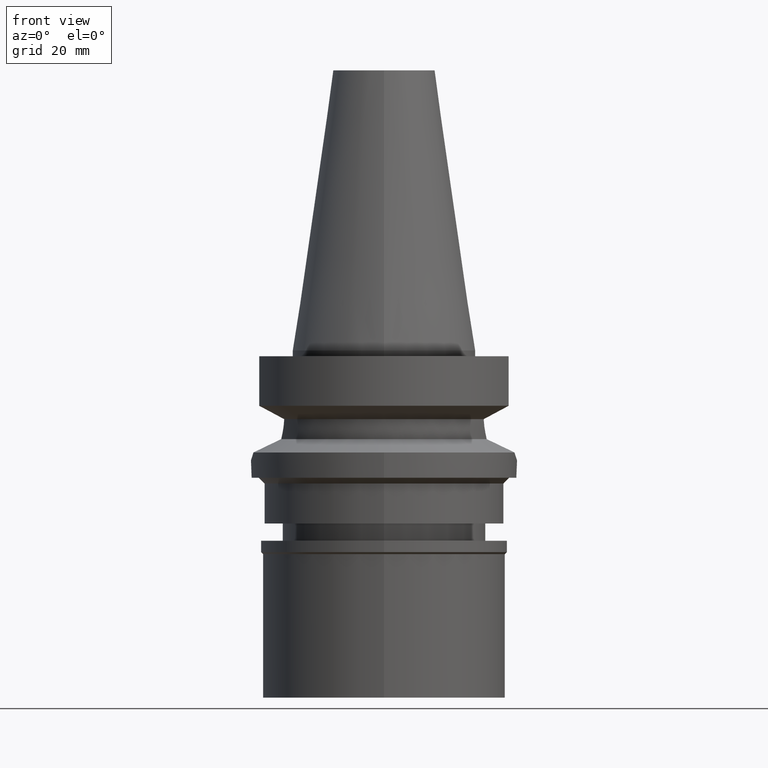
[diagram: clean part render]
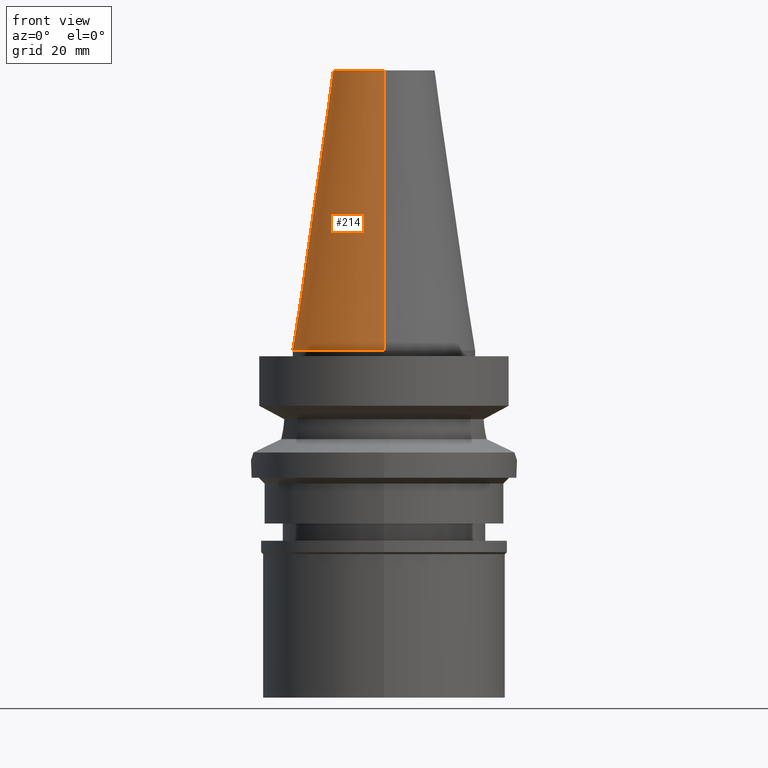
[diagram: same view with one face highlighted and labeled with its STEP entity id]
A machine part, front view. The second image highlights one B-rep face of the part: STEP entity #214.
In plain terms, the highlighted conical surface has half-angle 8.297 deg.
Its self-contained STEP definition (entity closure, byte-faithful):
#86 = ORIENTED_EDGE ( 'NONE', *, *, #2035, .F. ) ;
#188 = VECTOR ( 'NONE', #660, 1000.000000000000114 ) ;
#194 = VECTOR ( 'NONE', #1082, 1000.000000000000114 ) ;
#214 = ADVANCED_FACE ( 'NONE', ( #227 ), #2914, .T. ) ;
#227 = FACE_OUTER_BOUND ( 'NONE', #800, .T. ) ;
#259 = DIRECTION ( 'NONE',  ( 0.0000000000000000000, -1.000000000000000000, 0.0000000000000000000 ) ) ;
#382 = LINE ( 'NONE', #2243, #194 ) ;
#510 = CARTESIAN_POINT ( 'NONE',  ( 0.0000000000000000000, 0.0000000000000000000, -3.410605131648000255E-13 ) ) ;
#623 = VERTEX_POINT ( 'NONE', #697 ) ;
#638 = EDGE_CURVE ( 'NONE', #623, #2611, #2381, .T. ) ;
#660 = DIRECTION ( 'NONE',  ( 0.0000000000000000000, -0.1443043893539925626, -0.9895333461855498891 ) ) ;
#697 = CARTESIAN_POINT ( 'NONE',  ( 0.0000000000000000000, -8.816791732783000768, 48.39999999999999858 ) ) ;
#800 = EDGE_LOOP ( 'NONE', ( #2926, #86, #2666, #2380 ) ) ;
#1082 = DIRECTION ( 'NONE',  ( 0.0000000000000000000, 0.1443043893539925626, -0.9895333461855498891 ) ) ;
#1136 = CARTESIAN_POINT ( 'NONE',  ( 0.0000000000000000000, 0.0000000000000000000, 48.39999999999999858 ) ) ;
#1260 = CIRCLE ( 'NONE', #2978, 15.87500000000000000 ) ;
#1422 = DIRECTION ( 'NONE',  ( 0.0000000000000000000, 0.0000000000000000000, -1.000000000000000000 ) ) ;
#1434 = DIRECTION ( 'NONE',  ( 0.0000000000000000000, -1.000000000000000000, 0.0000000000000000000 ) ) ;
#1563 = VERTEX_POINT ( 'NONE', #2494 ) ;
#1609 = DIRECTION ( 'NONE',  ( 0.0000000000000000000, 0.0000000000000000000, -1.000000000000000000 ) ) ;
#1662 = DIRECTION ( 'NONE',  ( 0.0000000000000000000, 0.0000000000000000000, -1.000000000000000000 ) ) ;
#1774 = CARTESIAN_POINT ( 'NONE',  ( 0.0000000000000000000, 8.816791732783000768, 48.39999999999999858 ) ) ;
#2035 = EDGE_CURVE ( 'NONE', #623, #1563, #2080, .T. ) ;
#2080 = LINE ( 'NONE', #2262, #188 ) ;
#2243 = CARTESIAN_POINT ( 'NONE',  ( 0.0000000000000000000, 8.816791732783000768, 48.39999999999999858 ) ) ;
#2251 = CARTESIAN_POINT ( 'NONE',  ( 0.0000000000000000000, 0.0000000000000000000, 24.19999999999999929 ) ) ;
#2262 = CARTESIAN_POINT ( 'NONE',  ( 0.0000000000000000000, -8.816791732783000768, 48.39999999999999858 ) ) ;
#2306 = CARTESIAN_POINT ( 'NONE',  ( 0.0000000000000000000, 15.87500000000000000, -1.527666881883999820E-13 ) ) ;
#2380 = ORIENTED_EDGE ( 'NONE', *, *, #2600, .T. ) ;
#2381 = CIRCLE ( 'NONE', #3016, 8.816791732783000768 ) ;
#2445 = VERTEX_POINT ( 'NONE', #2306 ) ;
#2494 = CARTESIAN_POINT ( 'NONE',  ( 0.0000000000000000000, -15.87500000000000000, -1.527666881883999820E-13 ) ) ;
#2600 = EDGE_CURVE ( 'NONE', #2611, #2445, #382, .T. ) ;
#2611 = VERTEX_POINT ( 'NONE', #1774 ) ;
#2653 = EDGE_CURVE ( 'NONE', #1563, #2445, #1260, .T. ) ;
#2666 = ORIENTED_EDGE ( 'NONE', *, *, #638, .T. ) ;
#2757 = AXIS2_PLACEMENT_3D ( 'NONE', #2251, #1609, #3027 ) ;
#2914 = CONICAL_SURFACE ( 'NONE', #2757, 12.34589586639000025, 0.1448099680379422438 ) ;
#2926 = ORIENTED_EDGE ( 'NONE', *, *, #2653, .F. ) ;
#2978 = AXIS2_PLACEMENT_3D ( 'NONE', #510, #1662, #1434 ) ;
#3016 = AXIS2_PLACEMENT_3D ( 'NONE', #1136, #1422, #259 ) ;
#3027 = DIRECTION ( 'NONE',  ( 0.0000000000000000000, -1.000000000000000000, 0.0000000000000000000 ) ) ;